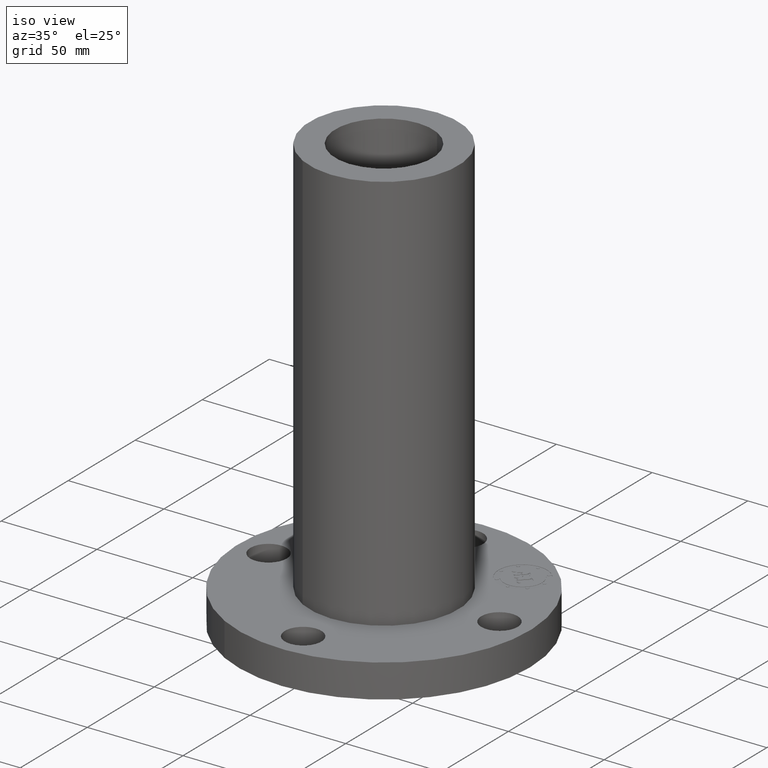
[diagram: clean part render]
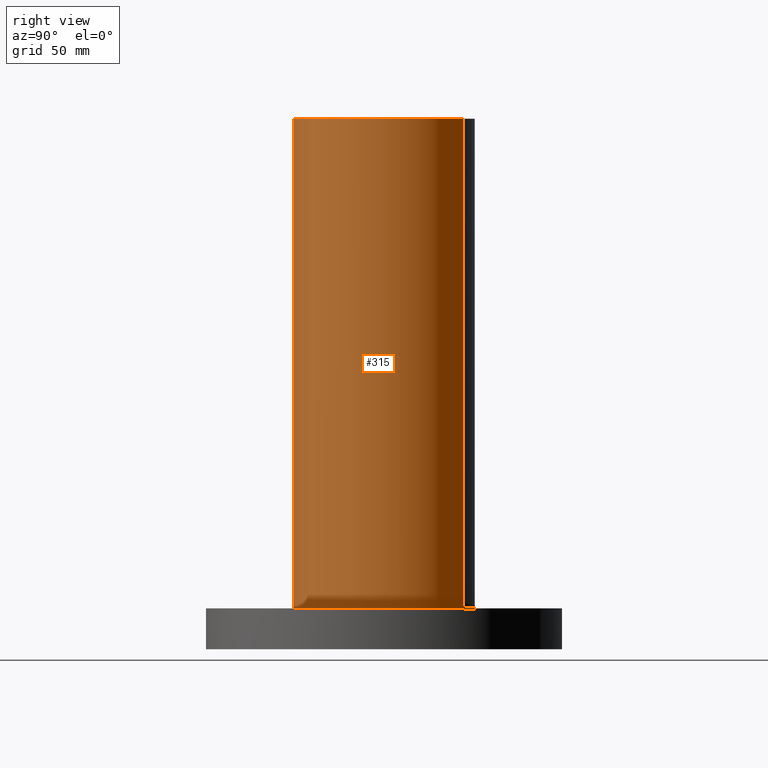
[diagram: tour spotlight — one face highlighted and labeled with its STEP entity id]
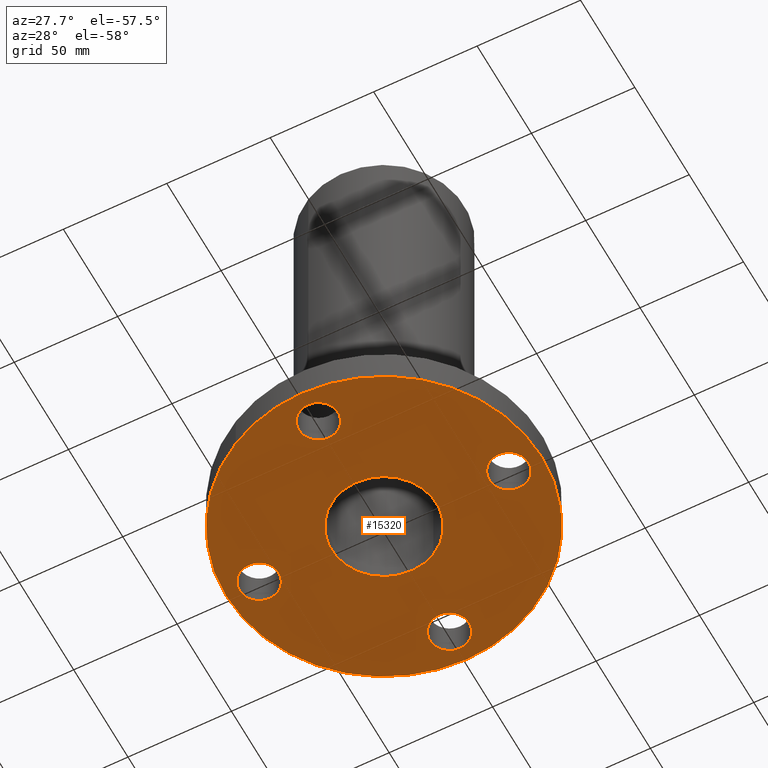
[diagram: tour spotlight — one face highlighted and labeled with its STEP entity id]
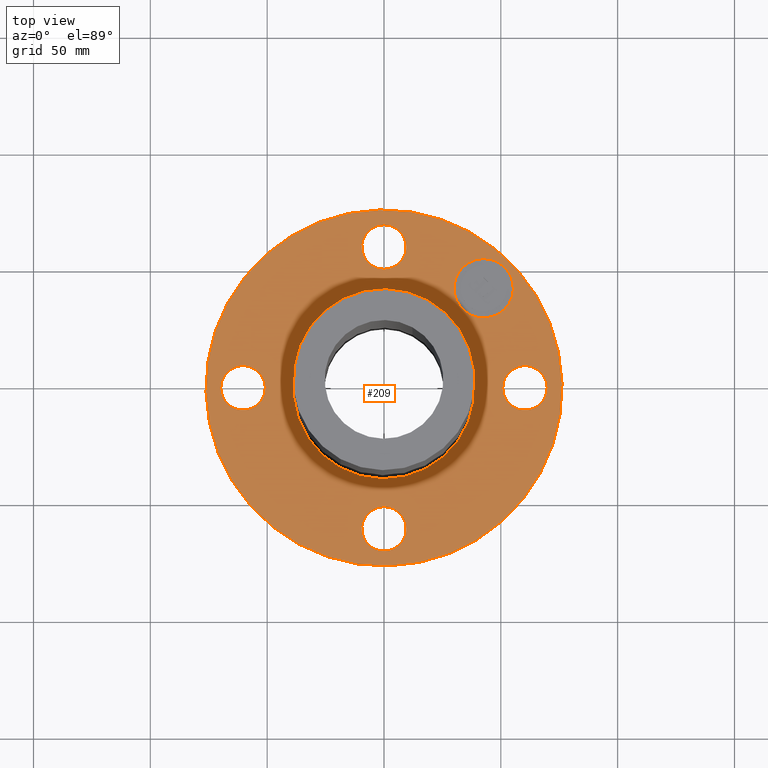
[diagram: tour spotlight — one face highlighted and labeled with its STEP entity id]
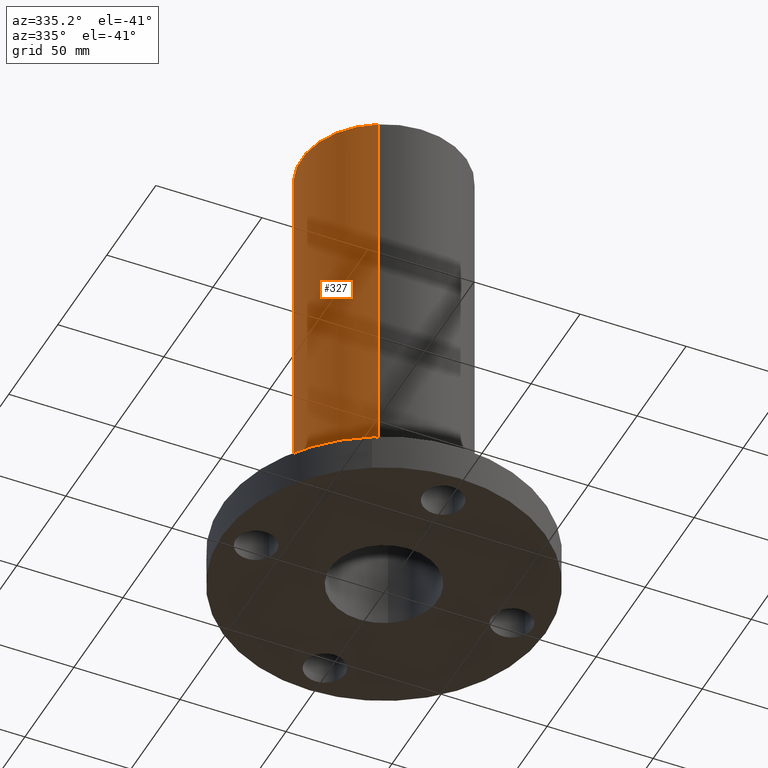
[diagram: tour spotlight — one face highlighted and labeled with its STEP entity id]
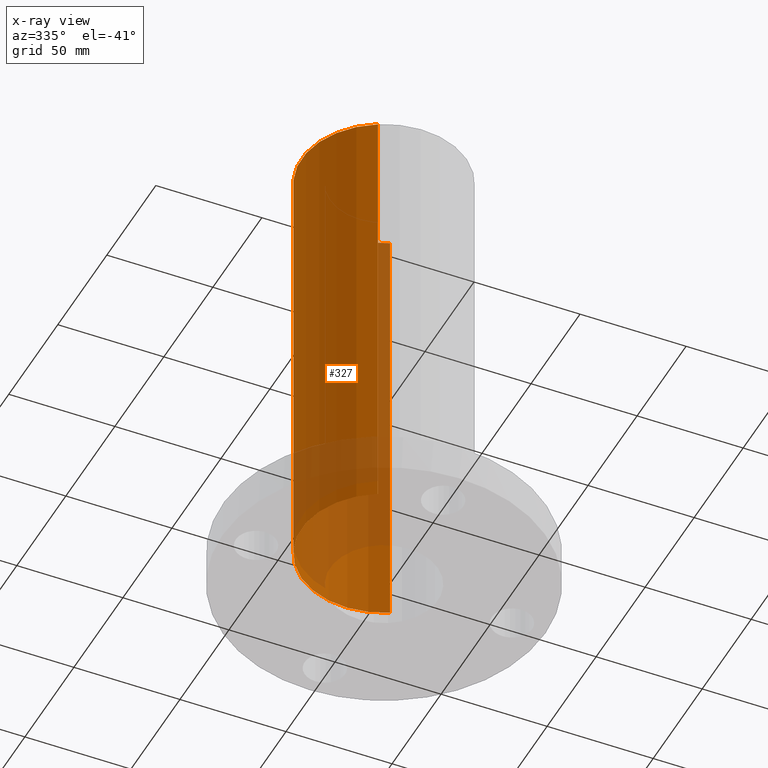
[diagram: x-ray of the same camera — body ghosted, this tour face saturated]
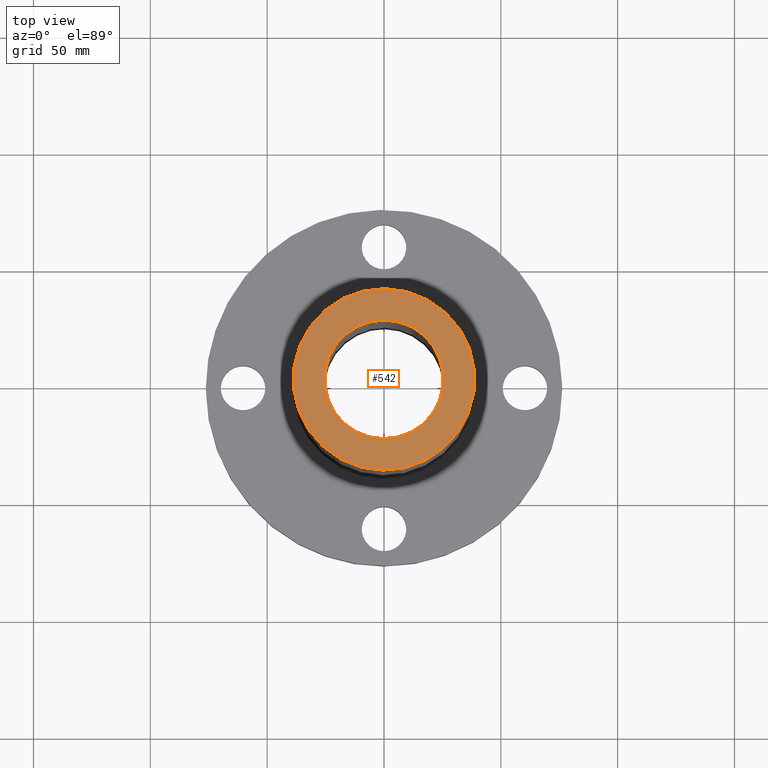
[diagram: tour spotlight — one face highlighted and labeled with its STEP entity id]
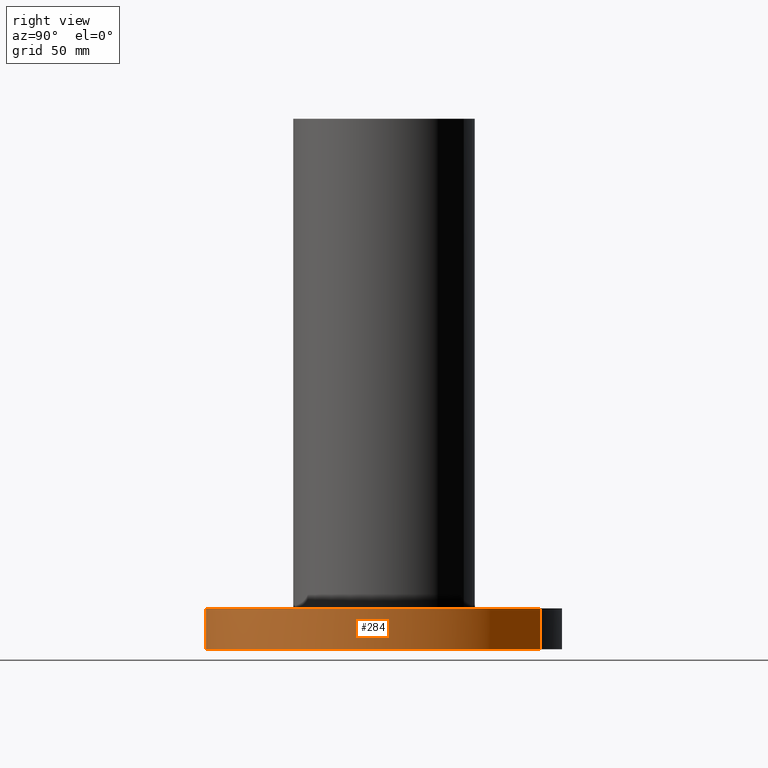
[diagram: tour spotlight — one face highlighted and labeled with its STEP entity id]
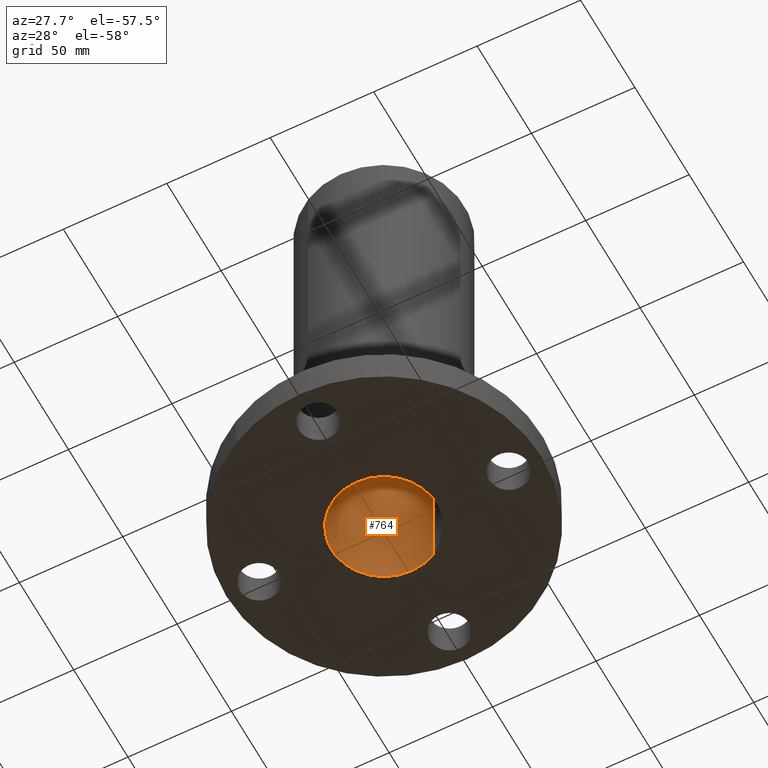
[diagram: tour spotlight — one face highlighted and labeled with its STEP entity id]
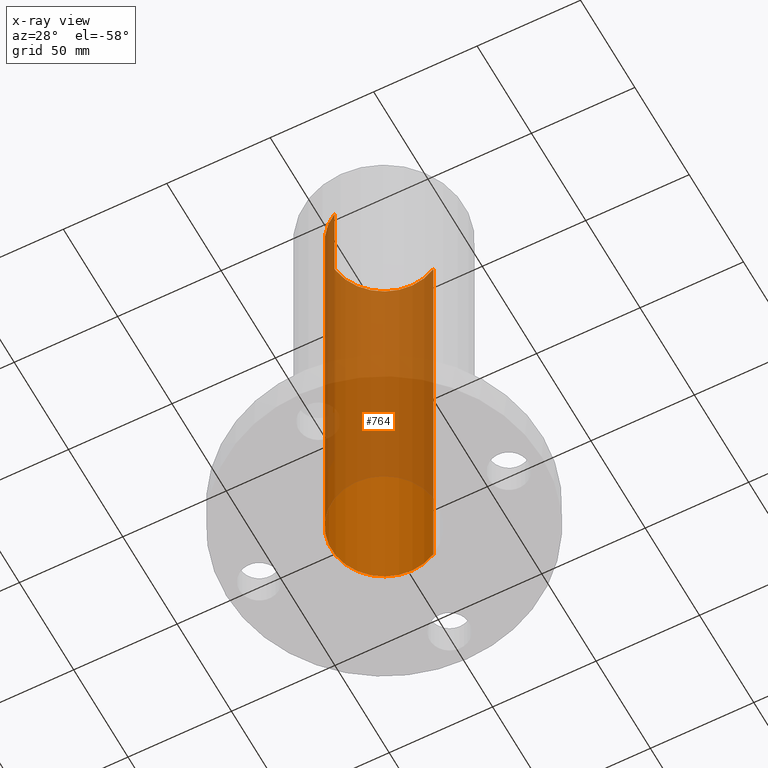
[diagram: x-ray of the same camera — body ghosted, this tour face saturated]
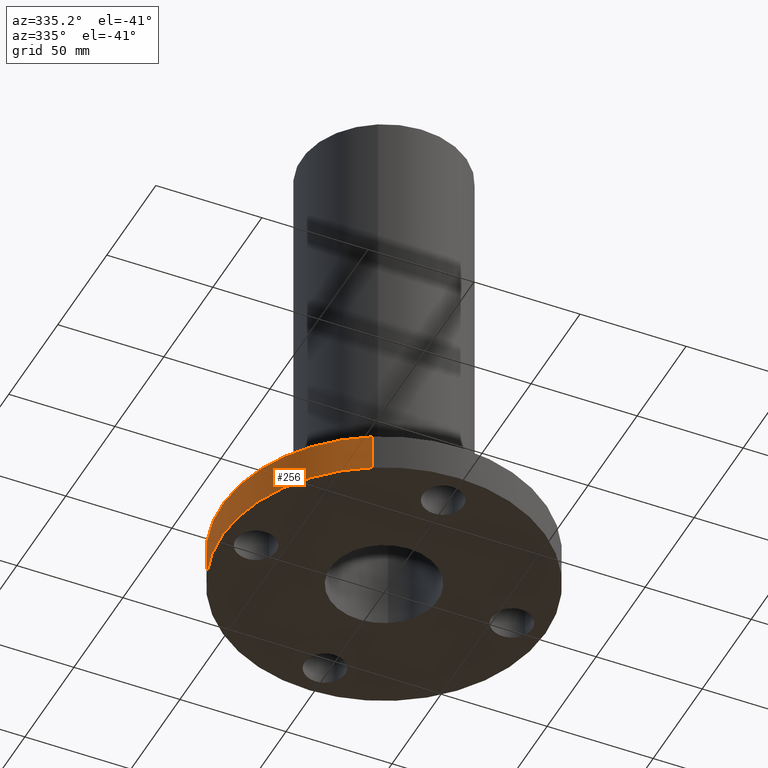
[diagram: tour spotlight — one face highlighted and labeled with its STEP entity id]
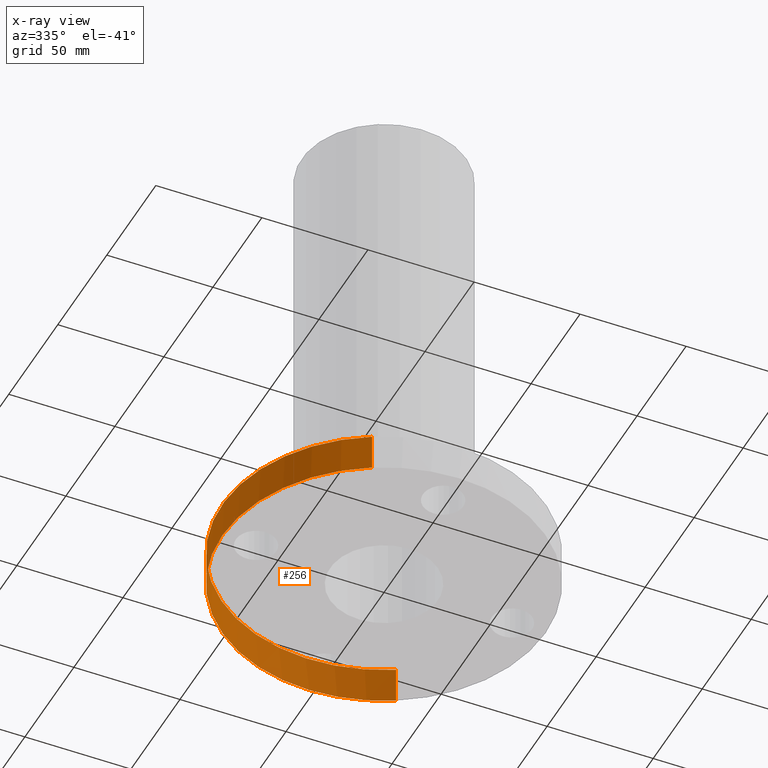
[diagram: x-ray of the same camera — body ghosted, this tour face saturated]
A machine part: a face-by-face anatomy tour. The part has 402 B-rep faces; the first image is the clean iso view, then the 8 largest visible faces are spotlighted one at a time (largest first), each with its STEP entity span.

Face 1 — right view, entity #315. In plain terms, the highlighted cylindrical surface (partial cylindrical patch) has radius 38.862 mm, axis along (0, 0, -1).
Definition (entity closure, byte-faithful):
#130=AXIS2_PLACEMENT_3D('Circle Axis2P3D',#128,#129,$) ;
#288=AXIS2_PLACEMENT_3D('Cylinder Axis2P3D',#285,#286,#287) ;
#299=AXIS2_PLACEMENT_3D('Circle Axis2P3D',#297,#298,$) ;
#123=CARTESIAN_POINT('Vertex',(-0.733521074067,-1.3427013197,0.687500000003)) ;
#125=CARTESIAN_POINT('Vertex',(0.733521074067,1.3427013197,0.687500000003)) ;
#128=CARTESIAN_POINT('Axis2P3D Location',(0.,0.,0.687500000003)) ;
#285=CARTESIAN_POINT('Axis2P3D Location',(0.,0.,4.43750000002)) ;
#290=CARTESIAN_POINT('Line Origine',(0.733521074067,1.3427013197,4.81250000002)) ;
#294=CARTESIAN_POINT('Vertex',(0.733521074067,1.3427013197,8.93750000004)) ;
#297=CARTESIAN_POINT('Axis2P3D Location',(0.,0.,8.93750000004)) ;
#301=CARTESIAN_POINT('Vertex',(-0.733521074067,-1.3427013197,8.93750000004)) ;
#304=CARTESIAN_POINT('Line Origine',(-0.733521074067,-1.3427013197,4.81250000002)) ;
#129=DIRECTION('Axis2P3D Direction',(0.,0.,-0.0393700787402)) ;
#286=DIRECTION('Axis2P3D Direction',(0.,0.,-0.0393700787402)) ;
#287=DIRECTION('Axis2P3D XDirection',(-0.0188750212049,-0.0345504945626,0.)) ;
#291=DIRECTION('Vector Direction',(0.,0.,-0.0393700787402)) ;
#298=DIRECTION('Axis2P3D Direction',(0.,0.,-0.0393700787402)) ;
#305=DIRECTION('Vector Direction',(0.,0.,-0.0393700787402)) ;
#292=VECTOR('Line Direction',#291,0.0393700787402) ;
#306=VECTOR('Line Direction',#305,0.0393700787402) ;
#310=ORIENTED_EDGE('',*,*,#132,.F.) ;
#311=ORIENTED_EDGE('',*,*,#296,.T.) ;
#312=ORIENTED_EDGE('',*,*,#303,.T.) ;
#313=ORIENTED_EDGE('',*,*,#308,.F.) ;
#315=ADVANCED_FACE('PartBody',(#314),#289,.T.) ;
#131=CIRCLE('generated circle',#130,1.53000000001) ;
#300=CIRCLE('generated circle',#299,1.53000000001) ;
#289=CYLINDRICAL_SURFACE('generated cylinder',#288,1.53000000001) ;
#132=EDGE_CURVE('',#126,#124,#131,.T.) ;
#296=EDGE_CURVE('',#126,#295,#293,.F.) ;
#303=EDGE_CURVE('',#295,#302,#300,.T.) ;
#308=EDGE_CURVE('',#124,#302,#307,.F.) ;
#309=EDGE_LOOP('',(#310,#311,#312,#313)) ;
#314=FACE_OUTER_BOUND('',#309,.T.) ;
#293=LINE('Line',#290,#292) ;
#307=LINE('Line',#304,#306) ;
#124=VERTEX_POINT('',#123) ;
#126=VERTEX_POINT('',#125) ;
#295=VERTEX_POINT('',#294) ;
#302=VERTEX_POINT('',#301) ;

Face 2 — auxiliary view, entity #15320. In plain terms, the highlighted planar face has unit normal (0, 0, 1).
Definition (entity closure, byte-faithful):
#65=AXIS2_PLACEMENT_3D('Circle Axis2P3D',#63,#64,$) ;
#82=AXIS2_PLACEMENT_3D('Circle Axis2P3D',#80,#81,$) ;
#217=AXIS2_PLACEMENT_3D('Circle Axis2P3D',#215,#216,$) ;
#226=AXIS2_PLACEMENT_3D('Circle Axis2P3D',#224,#225,$) ;
#233=AXIS2_PLACEMENT_3D('Circle Axis2P3D',#231,#232,$) ;
#259=AXIS2_PLACEMENT_3D('Circle Axis2P3D',#257,#258,$) ;
#266=AXIS2_PLACEMENT_3D('Circle Axis2P3D',#264,#265,$) ;
#273=AXIS2_PLACEMENT_3D('Circle Axis2P3D',#271,#272,$) ;
#349=AXIS2_PLACEMENT_3D('Circle Axis2P3D',#347,#348,$) ;
#361=AXIS2_PLACEMENT_3D('Circle Axis2P3D',#359,#360,$) ;
#392=AXIS2_PLACEMENT_3D('Circle Axis2P3D',#390,#391,$) ;
#404=AXIS2_PLACEMENT_3D('Circle Axis2P3D',#402,#403,$) ;
#435=AXIS2_PLACEMENT_3D('Circle Axis2P3D',#433,#434,$) ;
#447=AXIS2_PLACEMENT_3D('Circle Axis2P3D',#445,#446,$) ;
#729=AXIS2_PLACEMENT_3D('Circle Axis2P3D',#727,#728,$) ;
#755=AXIS2_PLACEMENT_3D('Circle Axis2P3D',#753,#754,$) ;
#15290=AXIS2_PLACEMENT_3D('Plane Axis2P3D',#15287,#15288,#15289) ;
#46=CARTESIAN_POINT('Vertex',(2.0459065393,-0.179784576977,2.2401153548E-016)) ;
#60=CARTESIAN_POINT('Vertex',(2.70409346072,0.179784576977,2.2401153548E-016)) ;
#63=CARTESIAN_POINT('Axis2P3D Location',(2.37500000001,0.,0.)) ;
#80=CARTESIAN_POINT('Axis2P3D Location',(2.37500000001,0.,0.)) ;
#215=CARTESIAN_POINT('Axis2P3D Location',(0.,0.,5.59482469102E-016)) ;
#219=CARTESIAN_POINT('Vertex',(-4.82436794905E-016,3.00000000001,0.)) ;
#221=CARTESIAN_POINT('Vertex',(1.43827661582,2.63274768568,5.59482469102E-016)) ;
#224=CARTESIAN_POINT('Axis2P3D Location',(0.,0.,5.59482469102E-016)) ;
#228=CARTESIAN_POINT('Vertex',(-3.00000000001,-1.6996616693E-015,0.)) ;
#231=CARTESIAN_POINT('Axis2P3D Location',(0.,0.,5.59482469102E-016)) ;
#235=CARTESIAN_POINT('Vertex',(-1.43827661582,-2.63274768568,5.59482469102E-016)) ;
#257=CARTESIAN_POINT('Axis2P3D Location',(0.,0.,5.59482469102E-016)) ;
#261=CARTESIAN_POINT('Vertex',(-4.82436794905E-016,-3.00000000001,0.)) ;
#264=CARTESIAN_POINT('Axis2P3D Location',(0.,0.,5.59482469102E-016)) ;
#268=CARTESIAN_POINT('Vertex',(3.00000000001,8.39223703654E-016,0.)) ;
#271=CARTESIAN_POINT('Axis2P3D Location',(0.,0.,5.59482469102E-016)) ;
#337=CARTESIAN_POINT('Vertex',(-0.179784576977,-2.0459065393,2.2401153548E-016)) ;
#344=CARTESIAN_POINT('Vertex',(0.179784576977,-2.70409346072,2.2401153548E-016)) ;
#347=CARTESIAN_POINT('Axis2P3D Location',(-1.34314427152E-016,-2.37500000001,0.)) ;
#359=CARTESIAN_POINT('Axis2P3D Location',(-1.34314427152E-016,-2.37500000001,0.)) ;
#380=CARTESIAN_POINT('Vertex',(-2.0459065393,0.179784576977,2.2401153548E-016)) ;
#387=CARTESIAN_POINT('Vertex',(-2.70409346072,-0.179784576977,2.2401153548E-016)) ;
#390=CARTESIAN_POINT('Axis2P3D Location',(-2.37500000001,-2.90853614799E-016,0.)) ;
#402=CARTESIAN_POINT('Axis2P3D Location',(-2.37500000001,-2.90853614799E-016,0.)) ;
#423=CARTESIAN_POINT('Vertex',(0.179784576977,2.0459065393,2.2401153548E-016)) ;
#430=CARTESIAN_POINT('Vertex',(-0.179784576977,2.70409346072,2.2401153548E-016)) ;
#433=CARTESIAN_POINT('Axis2P3D Location',(-1.56539187647E-016,2.37500000001,0.)) ;
#445=CARTESIAN_POINT('Axis2P3D Location',(-1.56539187647E-016,2.37500000001,0.)) ;
#727=CARTESIAN_POINT('Axis2P3D Location',(0.,0.,0.)) ;
#731=CARTESIAN_POINT('Vertex',(-0.479425538606,-0.877582561894,0.)) ;
#733=CARTESIAN_POINT('Vertex',(0.479425538606,0.877582561894,0.)) ;
#753=CARTESIAN_POINT('Axis2P3D Location',(0.,0.,0.)) ;
#15287=CARTESIAN_POINT('Axis2P3D Location',(0.,0.,0.)) ;
#64=DIRECTION('Axis2P3D Direction',(0.,-0.,0.0393700787402)) ;
#81=DIRECTION('Axis2P3D Direction',(0.,-0.,0.0393700787402)) ;
#216=DIRECTION('Axis2P3D Direction',(0.,0.,-0.0393700787402)) ;
#225=DIRECTION('Axis2P3D Direction',(0.,0.,-0.0393700787402)) ;
#232=DIRECTION('Axis2P3D Direction',(0.,0.,-0.0393700787402)) ;
#258=DIRECTION('Axis2P3D Direction',(0.,0.,-0.0393700787402)) ;
#265=DIRECTION('Axis2P3D Direction',(0.,0.,-0.0393700787402)) ;
#272=DIRECTION('Axis2P3D Direction',(0.,0.,-0.0393700787402)) ;
#348=DIRECTION('Axis2P3D Direction',(-0.,0.,0.0393700787402)) ;
#360=DIRECTION('Axis2P3D Direction',(-0.,0.,0.0393700787402)) ;
#391=DIRECTION('Axis2P3D Direction',(0.,0.,0.0393700787402)) ;
#403=DIRECTION('Axis2P3D Direction',(0.,0.,0.0393700787402)) ;
#434=DIRECTION('Axis2P3D Direction',(0.,0.,0.0393700787402)) ;
#446=DIRECTION('Axis2P3D Direction',(0.,0.,0.0393700787402)) ;
#728=DIRECTION('Axis2P3D Direction',(0.,0.,-0.0393700787402)) ;
#754=DIRECTION('Axis2P3D Direction',(0.,0.,-0.0393700787402)) ;
#15288=DIRECTION('Axis2P3D Direction',(0.,0.,0.0393700787402)) ;
#15289=DIRECTION('Axis2P3D XDirection',(0.0393700787402,0.,0.)) ;
#15293=ORIENTED_EDGE('',*,*,#263,.T.) ;
#15294=ORIENTED_EDGE('',*,*,#237,.T.) ;
#15295=ORIENTED_EDGE('',*,*,#230,.T.) ;
#15296=ORIENTED_EDGE('',*,*,#223,.T.) ;
#15297=ORIENTED_EDGE('',*,*,#275,.T.) ;
#15298=ORIENTED_EDGE('',*,*,#270,.T.) ;
#15301=ORIENTED_EDGE('',*,*,#437,.F.) ;
#15302=ORIENTED_EDGE('',*,*,#449,.F.) ;
#15305=ORIENTED_EDGE('',*,*,#394,.F.) ;
#15306=ORIENTED_EDGE('',*,*,#406,.F.) ;
#15309=ORIENTED_EDGE('',*,*,#351,.F.) ;
#15310=ORIENTED_EDGE('',*,*,#363,.F.) ;
#15313=ORIENTED_EDGE('',*,*,#84,.F.) ;
#15314=ORIENTED_EDGE('',*,*,#67,.F.) ;
#15317=ORIENTED_EDGE('',*,*,#757,.T.) ;
#15318=ORIENTED_EDGE('',*,*,#735,.T.) ;
#15303=FACE_BOUND('',#15300,.T.) ;
#15307=FACE_BOUND('',#15304,.T.) ;
#15311=FACE_BOUND('',#15308,.T.) ;
#15315=FACE_BOUND('',#15312,.T.) ;
#15319=FACE_BOUND('',#15316,.T.) ;
#15320=ADVANCED_FACE('PartBody',(#15299,#15303,#15307,#15311,#15315,#15319),#15291,.F.) ;
#66=CIRCLE('generated circle',#65,0.375000000002) ;
#83=CIRCLE('generated circle',#82,0.375000000002) ;
#218=CIRCLE('generated circle',#217,3.00000000001) ;
#227=CIRCLE('generated circle',#226,3.00000000001) ;
#234=CIRCLE('generated circle',#233,3.00000000001) ;
#260=CIRCLE('generated circle',#259,3.00000000001) ;
#267=CIRCLE('generated circle',#266,3.00000000001) ;
#274=CIRCLE('generated circle',#273,3.00000000001) ;
#350=CIRCLE('generated circle',#349,0.375000000002) ;
#362=CIRCLE('generated circle',#361,0.375000000002) ;
#393=CIRCLE('generated circle',#392,0.375000000001) ;
#405=CIRCLE('generated circle',#404,0.375000000001) ;
#436=CIRCLE('generated circle',#435,0.375000000002) ;
#448=CIRCLE('generated circle',#447,0.375000000002) ;
#730=CIRCLE('generated circle',#729,1.) ;
#756=CIRCLE('generated circle',#755,1.) ;
#67=EDGE_CURVE('',#61,#47,#66,.F.) ;
#84=EDGE_CURVE('',#47,#61,#83,.F.) ;
#223=EDGE_CURVE('',#220,#222,#218,.T.) ;
#230=EDGE_CURVE('',#229,#220,#227,.T.) ;
#237=EDGE_CURVE('',#236,#229,#234,.T.) ;
#263=EDGE_CURVE('',#262,#236,#260,.T.) ;
#270=EDGE_CURVE('',#269,#262,#267,.T.) ;
#275=EDGE_CURVE('',#222,#269,#274,.T.) ;
#351=EDGE_CURVE('',#345,#338,#350,.F.) ;
#363=EDGE_CURVE('',#338,#345,#362,.F.) ;
#394=EDGE_CURVE('',#388,#381,#393,.F.) ;
#406=EDGE_CURVE('',#381,#388,#405,.F.) ;
#437=EDGE_CURVE('',#431,#424,#436,.F.) ;
#449=EDGE_CURVE('',#424,#431,#448,.F.) ;
#735=EDGE_CURVE('',#732,#734,#730,.F.) ;
#757=EDGE_CURVE('',#734,#732,#756,.F.) ;
#15292=EDGE_LOOP('',(#15293,#15294,#15295,#15296,#15297,#15298)) ;
#15300=EDGE_LOOP('',(#15301,#15302)) ;
#15304=EDGE_LOOP('',(#15305,#15306)) ;
#15308=EDGE_LOOP('',(#15309,#15310)) ;
#15312=EDGE_LOOP('',(#15313,#15314)) ;
#15316=EDGE_LOOP('',(#15317,#15318)) ;
#15299=FACE_OUTER_BOUND('',#15292,.T.) ;
#15291=PLANE('',#15290) ;
#47=VERTEX_POINT('',#46) ;
#61=VERTEX_POINT('',#60) ;
#220=VERTEX_POINT('',#219) ;
#222=VERTEX_POINT('',#221) ;
#229=VERTEX_POINT('',#228) ;
#236=VERTEX_POINT('',#235) ;
#262=VERTEX_POINT('',#261) ;
#269=VERTEX_POINT('',#268) ;
#338=VERTEX_POINT('',#337) ;
#345=VERTEX_POINT('',#344) ;
#381=VERTEX_POINT('',#380) ;
#388=VERTEX_POINT('',#387) ;
#424=VERTEX_POINT('',#423) ;
#431=VERTEX_POINT('',#430) ;
#732=VERTEX_POINT('',#731) ;
#734=VERTEX_POINT('',#733) ;

Face 3 — top view, entity #209. In plain terms, the highlighted planar face has unit normal (0, 0, -1).
Definition (entity closure, byte-faithful):
#51=AXIS2_PLACEMENT_3D('Circle Axis2P3D',#49,#50,$) ;
#77=AXIS2_PLACEMENT_3D('Circle Axis2P3D',#75,#76,$) ;
#95=AXIS2_PLACEMENT_3D('Plane Axis2P3D',#92,#93,#94) ;
#99=AXIS2_PLACEMENT_3D('Circle Axis2P3D',#97,#98,$) ;
#108=AXIS2_PLACEMENT_3D('Circle Axis2P3D',#106,#107,$) ;
#121=AXIS2_PLACEMENT_3D('Circle Axis2P3D',#119,#120,$) ;
#130=AXIS2_PLACEMENT_3D('Circle Axis2P3D',#128,#129,$) ;
#139=AXIS2_PLACEMENT_3D('Circle Axis2P3D',#137,#138,$) ;
#148=AXIS2_PLACEMENT_3D('Circle Axis2P3D',#146,#147,$) ;
#157=AXIS2_PLACEMENT_3D('Circle Axis2P3D',#155,#156,$) ;
#166=AXIS2_PLACEMENT_3D('Circle Axis2P3D',#164,#165,$) ;
#175=AXIS2_PLACEMENT_3D('Circle Axis2P3D',#173,#174,$) ;
#184=AXIS2_PLACEMENT_3D('Circle Axis2P3D',#182,#183,$) ;
#193=AXIS2_PLACEMENT_3D('Circle Axis2P3D',#191,#192,$) ;
#202=AXIS2_PLACEMENT_3D('Circle Axis2P3D',#200,#201,$) ;
#44=CARTESIAN_POINT('Vertex',(2.0459065393,-0.179784576977,0.687500000003)) ;
#49=CARTESIAN_POINT('Axis2P3D Location',(2.37500000001,0.,0.687500000003)) ;
#53=CARTESIAN_POINT('Vertex',(2.70409346072,0.179784576977,0.687500000003)) ;
#75=CARTESIAN_POINT('Axis2P3D Location',(2.37500000001,0.,0.687500000003)) ;
#92=CARTESIAN_POINT('Axis2P3D Location',(0.,3.00000000001,0.687500000003)) ;
#97=CARTESIAN_POINT('Axis2P3D Location',(0.,0.,0.687500000003)) ;
#101=CARTESIAN_POINT('Vertex',(1.43827661582,2.63274768568,0.687500000003)) ;
#103=CARTESIAN_POINT('Vertex',(-1.43827661582,-2.63274768568,0.687500000003)) ;
#106=CARTESIAN_POINT('Axis2P3D Location',(0.,0.,0.687500000003)) ;
#119=CARTESIAN_POINT('Axis2P3D Location',(0.,0.,0.687500000003)) ;
#123=CARTESIAN_POINT('Vertex',(-0.733521074067,-1.3427013197,0.687500000003)) ;
#125=CARTESIAN_POINT('Vertex',(0.733521074067,1.3427013197,0.687500000003)) ;
#128=CARTESIAN_POINT('Axis2P3D Location',(0.,0.,0.687500000003)) ;
#137=CARTESIAN_POINT('Axis2P3D Location',(-1.74838271595E-016,-2.37500000001,0.687500000003)) ;
#141=CARTESIAN_POINT('Vertex',(-0.179784576977,-2.0459065393,0.687500000003)) ;
#143=CARTESIAN_POINT('Vertex',(0.179784576977,-2.70409346072,0.687500000003)) ;
#146=CARTESIAN_POINT('Axis2P3D Location',(-1.74838271595E-016,-2.37500000001,0.687500000003)) ;
#155=CARTESIAN_POINT('Axis2P3D Location',(-2.37500000001,-5.59482469102E-016,0.687500000003)) ;
#159=CARTESIAN_POINT('Vertex',(-2.0459065393,0.179784576977,0.687500000003)) ;
#161=CARTESIAN_POINT('Vertex',(-2.70409346072,-0.179784576977,0.687500000003)) ;
#164=CARTESIAN_POINT('Axis2P3D Location',(-2.37500000001,-5.59482469102E-016,0.687500000003)) ;
#173=CARTESIAN_POINT('Axis2P3D Location',(-1.39870617276E-016,2.37500000001,0.687500000003)) ;
#177=CARTESIAN_POINT('Vertex',(0.179784576977,2.0459065393,0.687500000003)) ;
#179=CARTESIAN_POINT('Vertex',(-0.179784576977,2.70409346072,0.687500000003)) ;
#182=CARTESIAN_POINT('Axis2P3D Location',(-3.49676543189E-017,2.37500000001,0.687500000003)) ;
#191=CARTESIAN_POINT('Axis2P3D Location',(1.67937860532,1.67937860532,0.687500000003)) ;
#195=CARTESIAN_POINT('Vertex',(2.03293199238,1.32582521827,0.687500000003)) ;
#197=CARTESIAN_POINT('Vertex',(1.32582521827,2.03293199238,0.687500000003)) ;
#200=CARTESIAN_POINT('Axis2P3D Location',(1.67937860532,1.67937860532,0.687500000003)) ;
#50=DIRECTION('Axis2P3D Direction',(0.,-0.,0.0393700787402)) ;
#76=DIRECTION('Axis2P3D Direction',(0.,-0.,0.0393700787402)) ;
#93=DIRECTION('Axis2P3D Direction',(0.,0.,-0.0393700787402)) ;
#94=DIRECTION('Axis2P3D XDirection',(0.0393700787402,0.,0.)) ;
#98=DIRECTION('Axis2P3D Direction',(0.,0.,-0.0393700787402)) ;
#107=DIRECTION('Axis2P3D Direction',(0.,0.,-0.0393700787402)) ;
#120=DIRECTION('Axis2P3D Direction',(0.,0.,-0.0393700787402)) ;
#129=DIRECTION('Axis2P3D Direction',(0.,0.,-0.0393700787402)) ;
#138=DIRECTION('Axis2P3D Direction',(0.,0.,-0.0393700787402)) ;
#147=DIRECTION('Axis2P3D Direction',(0.,0.,-0.0393700787402)) ;
#156=DIRECTION('Axis2P3D Direction',(0.,0.,-0.0393700787402)) ;
#165=DIRECTION('Axis2P3D Direction',(0.,0.,-0.0393700787402)) ;
#174=DIRECTION('Axis2P3D Direction',(0.,0.,-0.0393700787402)) ;
#183=DIRECTION('Axis2P3D Direction',(0.,0.,-0.0393700787402)) ;
#192=DIRECTION('Axis2P3D Direction',(0.,0.,-0.0393700787402)) ;
#201=DIRECTION('Axis2P3D Direction',(0.,0.,-0.0393700787402)) ;
#112=ORIENTED_EDGE('',*,*,#105,.F.) ;
#113=ORIENTED_EDGE('',*,*,#110,.F.) ;
#116=ORIENTED_EDGE('',*,*,#55,.T.) ;
#117=ORIENTED_EDGE('',*,*,#79,.T.) ;
#134=ORIENTED_EDGE('',*,*,#127,.T.) ;
#135=ORIENTED_EDGE('',*,*,#132,.T.) ;
#152=ORIENTED_EDGE('',*,*,#145,.T.) ;
#153=ORIENTED_EDGE('',*,*,#150,.T.) ;
#170=ORIENTED_EDGE('',*,*,#163,.T.) ;
#171=ORIENTED_EDGE('',*,*,#168,.T.) ;
#188=ORIENTED_EDGE('',*,*,#181,.T.) ;
#189=ORIENTED_EDGE('',*,*,#186,.T.) ;
#206=ORIENTED_EDGE('',*,*,#199,.F.) ;
#207=ORIENTED_EDGE('',*,*,#204,.F.) ;
#118=FACE_BOUND('',#115,.T.) ;
#136=FACE_BOUND('',#133,.T.) ;
#154=FACE_BOUND('',#151,.T.) ;
#172=FACE_BOUND('',#169,.T.) ;
#190=FACE_BOUND('',#187,.T.) ;
#208=FACE_BOUND('',#205,.T.) ;
#209=ADVANCED_FACE('PartBody',(#114,#118,#136,#154,#172,#190,#208),#96,.F.) ;
#52=CIRCLE('generated circle',#51,0.375000000002) ;
#78=CIRCLE('generated circle',#77,0.375000000002) ;
#100=CIRCLE('generated circle',#99,3.00000000001) ;
#109=CIRCLE('generated circle',#108,3.00000000001) ;
#122=CIRCLE('generated circle',#121,1.53000000001) ;
#131=CIRCLE('generated circle',#130,1.53000000001) ;
#140=CIRCLE('generated circle',#139,0.375000000002) ;
#149=CIRCLE('generated circle',#148,0.375000000002) ;
#158=CIRCLE('generated circle',#157,0.375000000001) ;
#167=CIRCLE('generated circle',#166,0.375000000001) ;
#176=CIRCLE('generated circle',#175,0.375000000002) ;
#185=CIRCLE('generated circle',#184,0.375000000002) ;
#194=CIRCLE('generated circle',#193,0.499999995002) ;
#203=CIRCLE('generated circle',#202,0.499999995002) ;
#55=EDGE_CURVE('',#54,#45,#52,.F.) ;
#79=EDGE_CURVE('',#45,#54,#78,.F.) ;
#105=EDGE_CURVE('',#102,#104,#100,.T.) ;
#110=EDGE_CURVE('',#104,#102,#109,.T.) ;
#127=EDGE_CURVE('',#124,#126,#122,.T.) ;
#132=EDGE_CURVE('',#126,#124,#131,.T.) ;
#145=EDGE_CURVE('',#142,#144,#140,.T.) ;
#150=EDGE_CURVE('',#144,#142,#149,.T.) ;
#163=EDGE_CURVE('',#160,#162,#158,.T.) ;
#168=EDGE_CURVE('',#162,#160,#167,.T.) ;
#181=EDGE_CURVE('',#178,#180,#176,.T.) ;
#186=EDGE_CURVE('',#180,#178,#185,.T.) ;
#199=EDGE_CURVE('',#196,#198,#194,.F.) ;
#204=EDGE_CURVE('',#198,#196,#203,.F.) ;
#111=EDGE_LOOP('',(#112,#113)) ;
#115=EDGE_LOOP('',(#116,#117)) ;
#133=EDGE_LOOP('',(#134,#135)) ;
#151=EDGE_LOOP('',(#152,#153)) ;
#169=EDGE_LOOP('',(#170,#171)) ;
#187=EDGE_LOOP('',(#188,#189)) ;
#205=EDGE_LOOP('',(#206,#207)) ;
#114=FACE_OUTER_BOUND('',#111,.T.) ;
#96=PLANE('',#95) ;
#45=VERTEX_POINT('',#44) ;
#54=VERTEX_POINT('',#53) ;
#102=VERTEX_POINT('',#101) ;
#104=VERTEX_POINT('',#103) ;
#124=VERTEX_POINT('',#123) ;
#126=VERTEX_POINT('',#125) ;
#142=VERTEX_POINT('',#141) ;
#144=VERTEX_POINT('',#143) ;
#160=VERTEX_POINT('',#159) ;
#162=VERTEX_POINT('',#161) ;
#178=VERTEX_POINT('',#177) ;
#180=VERTEX_POINT('',#179) ;
#196=VERTEX_POINT('',#195) ;
#198=VERTEX_POINT('',#197) ;

Face 4 — auxiliary view, entity #327. An x-ray twin of the same camera follows (body ghosted, this face saturated) — the face is partly hidden behind the body. In plain terms, the highlighted cylindrical surface (partial cylindrical patch) has radius 38.862 mm, axis along (0, 0, -1).
Definition (entity closure, byte-faithful):
#121=AXIS2_PLACEMENT_3D('Circle Axis2P3D',#119,#120,$) ;
#288=AXIS2_PLACEMENT_3D('Cylinder Axis2P3D',#285,#286,#287) ;
#318=AXIS2_PLACEMENT_3D('Circle Axis2P3D',#316,#317,$) ;
#119=CARTESIAN_POINT('Axis2P3D Location',(0.,0.,0.687500000003)) ;
#123=CARTESIAN_POINT('Vertex',(-0.733521074067,-1.3427013197,0.687500000003)) ;
#125=CARTESIAN_POINT('Vertex',(0.733521074067,1.3427013197,0.687500000003)) ;
#285=CARTESIAN_POINT('Axis2P3D Location',(0.,0.,4.43750000002)) ;
#290=CARTESIAN_POINT('Line Origine',(0.733521074067,1.3427013197,4.81250000002)) ;
#294=CARTESIAN_POINT('Vertex',(0.733521074067,1.3427013197,8.93750000004)) ;
#301=CARTESIAN_POINT('Vertex',(-0.733521074067,-1.3427013197,8.93750000004)) ;
#304=CARTESIAN_POINT('Line Origine',(-0.733521074067,-1.3427013197,4.81250000002)) ;
#316=CARTESIAN_POINT('Axis2P3D Location',(0.,0.,8.93750000004)) ;
#120=DIRECTION('Axis2P3D Direction',(0.,0.,-0.0393700787402)) ;
#286=DIRECTION('Axis2P3D Direction',(0.,0.,-0.0393700787402)) ;
#287=DIRECTION('Axis2P3D XDirection',(-0.0188750212049,-0.0345504945626,0.)) ;
#291=DIRECTION('Vector Direction',(0.,0.,-0.0393700787402)) ;
#305=DIRECTION('Vector Direction',(0.,0.,-0.0393700787402)) ;
#317=DIRECTION('Axis2P3D Direction',(0.,0.,-0.0393700787402)) ;
#292=VECTOR('Line Direction',#291,0.0393700787402) ;
#306=VECTOR('Line Direction',#305,0.0393700787402) ;
#322=ORIENTED_EDGE('',*,*,#127,.F.) ;
#323=ORIENTED_EDGE('',*,*,#308,.T.) ;
#324=ORIENTED_EDGE('',*,*,#320,.T.) ;
#325=ORIENTED_EDGE('',*,*,#296,.F.) ;
#327=ADVANCED_FACE('PartBody',(#326),#289,.T.) ;
#122=CIRCLE('generated circle',#121,1.53000000001) ;
#319=CIRCLE('generated circle',#318,1.53000000001) ;
#289=CYLINDRICAL_SURFACE('generated cylinder',#288,1.53000000001) ;
#127=EDGE_CURVE('',#124,#126,#122,.T.) ;
#296=EDGE_CURVE('',#126,#295,#293,.F.) ;
#308=EDGE_CURVE('',#124,#302,#307,.F.) ;
#320=EDGE_CURVE('',#302,#295,#319,.T.) ;
#321=EDGE_LOOP('',(#322,#323,#324,#325)) ;
#326=FACE_OUTER_BOUND('',#321,.T.) ;
#293=LINE('Line',#290,#292) ;
#307=LINE('Line',#304,#306) ;
#124=VERTEX_POINT('',#123) ;
#126=VERTEX_POINT('',#125) ;
#295=VERTEX_POINT('',#294) ;
#302=VERTEX_POINT('',#301) ;

Face 5 — top view, entity #542. In plain terms, the highlighted planar face has unit normal (0, 0, -1).
Definition (entity closure, byte-faithful):
#299=AXIS2_PLACEMENT_3D('Circle Axis2P3D',#297,#298,$) ;
#318=AXIS2_PLACEMENT_3D('Circle Axis2P3D',#316,#317,$) ;
#518=AXIS2_PLACEMENT_3D('Plane Axis2P3D',#515,#516,#517) ;
#526=AXIS2_PLACEMENT_3D('Circle Axis2P3D',#524,#525,$) ;
#535=AXIS2_PLACEMENT_3D('Circle Axis2P3D',#533,#534,$) ;
#294=CARTESIAN_POINT('Vertex',(0.733521074067,1.3427013197,8.93750000004)) ;
#297=CARTESIAN_POINT('Axis2P3D Location',(0.,0.,8.93750000004)) ;
#301=CARTESIAN_POINT('Vertex',(-0.733521074067,-1.3427013197,8.93750000004)) ;
#316=CARTESIAN_POINT('Axis2P3D Location',(0.,0.,8.93750000004)) ;
#515=CARTESIAN_POINT('Axis2P3D Location',(0.,1.53000000001,8.93750000004)) ;
#524=CARTESIAN_POINT('Axis2P3D Location',(0.,0.,8.93750000004)) ;
#528=CARTESIAN_POINT('Vertex',(-0.479425538606,-0.877582561894,8.93750000004)) ;
#530=CARTESIAN_POINT('Vertex',(0.479425538606,0.877582561894,8.93750000004)) ;
#533=CARTESIAN_POINT('Axis2P3D Location',(0.,0.,8.93750000004)) ;
#298=DIRECTION('Axis2P3D Direction',(0.,0.,-0.0393700787402)) ;
#317=DIRECTION('Axis2P3D Direction',(0.,0.,-0.0393700787402)) ;
#516=DIRECTION('Axis2P3D Direction',(0.,0.,-0.0393700787402)) ;
#517=DIRECTION('Axis2P3D XDirection',(0.0393700787402,0.,0.)) ;
#525=DIRECTION('Axis2P3D Direction',(0.,0.,-0.0393700787402)) ;
#534=DIRECTION('Axis2P3D Direction',(0.,0.,-0.0393700787402)) ;
#521=ORIENTED_EDGE('',*,*,#303,.F.) ;
#522=ORIENTED_EDGE('',*,*,#320,.F.) ;
#539=ORIENTED_EDGE('',*,*,#532,.T.) ;
#540=ORIENTED_EDGE('',*,*,#537,.T.) ;
#541=FACE_BOUND('',#538,.T.) ;
#542=ADVANCED_FACE('PartBody',(#523,#541),#519,.F.) ;
#300=CIRCLE('generated circle',#299,1.53000000001) ;
#319=CIRCLE('generated circle',#318,1.53000000001) ;
#527=CIRCLE('generated circle',#526,1.) ;
#536=CIRCLE('generated circle',#535,1.) ;
#303=EDGE_CURVE('',#295,#302,#300,.T.) ;
#320=EDGE_CURVE('',#302,#295,#319,.T.) ;
#532=EDGE_CURVE('',#529,#531,#527,.T.) ;
#537=EDGE_CURVE('',#531,#529,#536,.T.) ;
#520=EDGE_LOOP('',(#521,#522)) ;
#538=EDGE_LOOP('',(#539,#540)) ;
#523=FACE_OUTER_BOUND('',#520,.T.) ;
#519=PLANE('',#518) ;
#295=VERTEX_POINT('',#294) ;
#302=VERTEX_POINT('',#301) ;
#529=VERTEX_POINT('',#528) ;
#531=VERTEX_POINT('',#530) ;

Face 6 — right view, entity #284. In plain terms, the highlighted cylindrical surface (partial cylindrical patch) has radius 76.2 mm, axis along (0, 0, -1).
Definition (entity closure, byte-faithful):
#99=AXIS2_PLACEMENT_3D('Circle Axis2P3D',#97,#98,$) ;
#213=AXIS2_PLACEMENT_3D('Cylinder Axis2P3D',#210,#211,#212) ;
#259=AXIS2_PLACEMENT_3D('Circle Axis2P3D',#257,#258,$) ;
#266=AXIS2_PLACEMENT_3D('Circle Axis2P3D',#264,#265,$) ;
#273=AXIS2_PLACEMENT_3D('Circle Axis2P3D',#271,#272,$) ;
#97=CARTESIAN_POINT('Axis2P3D Location',(0.,0.,0.687500000003)) ;
#101=CARTESIAN_POINT('Vertex',(1.43827661582,2.63274768568,0.687500000003)) ;
#103=CARTESIAN_POINT('Vertex',(-1.43827661582,-2.63274768568,0.687500000003)) ;
#210=CARTESIAN_POINT('Axis2P3D Location',(0.,0.,4.43750000002)) ;
#221=CARTESIAN_POINT('Vertex',(1.43827661582,2.63274768568,5.59482469102E-016)) ;
#235=CARTESIAN_POINT('Vertex',(-1.43827661582,-2.63274768568,5.59482469102E-016)) ;
#238=CARTESIAN_POINT('Line Origine',(-1.43827661582,-2.63274768568,0.343750000001)) ;
#243=CARTESIAN_POINT('Line Origine',(1.43827661582,2.63274768568,0.343750000001)) ;
#257=CARTESIAN_POINT('Axis2P3D Location',(0.,0.,5.59482469102E-016)) ;
#261=CARTESIAN_POINT('Vertex',(-4.82436794905E-016,-3.00000000001,0.)) ;
#264=CARTESIAN_POINT('Axis2P3D Location',(0.,0.,5.59482469102E-016)) ;
#268=CARTESIAN_POINT('Vertex',(3.00000000001,8.39223703654E-016,0.)) ;
#271=CARTESIAN_POINT('Axis2P3D Location',(0.,0.,5.59482469102E-016)) ;
#98=DIRECTION('Axis2P3D Direction',(0.,0.,-0.0393700787402)) ;
#211=DIRECTION('Axis2P3D Direction',(0.,0.,-0.0393700787402)) ;
#212=DIRECTION('Axis2P3D XDirection',(0.0188750212049,0.0345504945626,0.)) ;
#239=DIRECTION('Vector Direction',(0.,0.,-0.0393700787402)) ;
#244=DIRECTION('Vector Direction',(0.,0.,-0.0393700787402)) ;
#258=DIRECTION('Axis2P3D Direction',(0.,0.,-0.0393700787402)) ;
#265=DIRECTION('Axis2P3D Direction',(0.,0.,-0.0393700787402)) ;
#272=DIRECTION('Axis2P3D Direction',(0.,0.,-0.0393700787402)) ;
#240=VECTOR('Line Direction',#239,0.0393700787402) ;
#245=VECTOR('Line Direction',#244,0.0393700787402) ;
#277=ORIENTED_EDGE('',*,*,#263,.F.) ;
#278=ORIENTED_EDGE('',*,*,#270,.F.) ;
#279=ORIENTED_EDGE('',*,*,#275,.F.) ;
#280=ORIENTED_EDGE('',*,*,#247,.T.) ;
#281=ORIENTED_EDGE('',*,*,#105,.T.) ;
#282=ORIENTED_EDGE('',*,*,#242,.F.) ;
#284=ADVANCED_FACE('PartBody',(#283),#214,.T.) ;
#100=CIRCLE('generated circle',#99,3.00000000001) ;
#260=CIRCLE('generated circle',#259,3.00000000001) ;
#267=CIRCLE('generated circle',#266,3.00000000001) ;
#274=CIRCLE('generated circle',#273,3.00000000001) ;
#214=CYLINDRICAL_SURFACE('generated cylinder',#213,3.00000000001) ;
#105=EDGE_CURVE('',#102,#104,#100,.T.) ;
#242=EDGE_CURVE('',#236,#104,#241,.F.) ;
#247=EDGE_CURVE('',#222,#102,#246,.F.) ;
#263=EDGE_CURVE('',#262,#236,#260,.T.) ;
#270=EDGE_CURVE('',#269,#262,#267,.T.) ;
#275=EDGE_CURVE('',#222,#269,#274,.T.) ;
#276=EDGE_LOOP('',(#277,#278,#279,#280,#281,#282)) ;
#283=FACE_OUTER_BOUND('',#276,.T.) ;
#241=LINE('Line',#238,#240) ;
#246=LINE('Line',#243,#245) ;
#102=VERTEX_POINT('',#101) ;
#104=VERTEX_POINT('',#103) ;
#222=VERTEX_POINT('',#221) ;
#236=VERTEX_POINT('',#235) ;
#262=VERTEX_POINT('',#261) ;
#269=VERTEX_POINT('',#268) ;

Face 7 — auxiliary view, entity #764. An x-ray twin of the same camera follows (body ghosted, this face saturated) — the face is partly hidden behind the body. In plain terms, the highlighted cylindrical surface (partial cylindrical patch) has radius 25.4 mm, axis along (0, 0, -1).
Definition (entity closure, byte-faithful):
#526=AXIS2_PLACEMENT_3D('Circle Axis2P3D',#524,#525,$) ;
#725=AXIS2_PLACEMENT_3D('Cylinder Axis2P3D',#722,#723,#724) ;
#755=AXIS2_PLACEMENT_3D('Circle Axis2P3D',#753,#754,$) ;
#524=CARTESIAN_POINT('Axis2P3D Location',(0.,0.,8.93750000004)) ;
#528=CARTESIAN_POINT('Vertex',(-0.479425538606,-0.877582561894,8.93750000004)) ;
#530=CARTESIAN_POINT('Vertex',(0.479425538606,0.877582561894,8.93750000004)) ;
#722=CARTESIAN_POINT('Axis2P3D Location',(0.,0.,4.43750000002)) ;
#731=CARTESIAN_POINT('Vertex',(-0.479425538606,-0.877582561894,0.)) ;
#733=CARTESIAN_POINT('Vertex',(0.479425538606,0.877582561894,0.)) ;
#736=CARTESIAN_POINT('Line Origine',(-0.479425538606,-0.877582561894,4.46875000002)) ;
#741=CARTESIAN_POINT('Line Origine',(0.479425538606,0.877582561894,4.46875000002)) ;
#753=CARTESIAN_POINT('Axis2P3D Location',(0.,0.,0.)) ;
#525=DIRECTION('Axis2P3D Direction',(0.,0.,-0.0393700787402)) ;
#723=DIRECTION('Axis2P3D Direction',(0.,0.,-0.0393700787402)) ;
#724=DIRECTION('Axis2P3D XDirection',(-0.0188750212049,-0.0345504945626,0.)) ;
#737=DIRECTION('Vector Direction',(0.,0.,-0.0393700787402)) ;
#742=DIRECTION('Vector Direction',(0.,0.,-0.0393700787402)) ;
#754=DIRECTION('Axis2P3D Direction',(0.,0.,-0.0393700787402)) ;
#738=VECTOR('Line Direction',#737,0.0393700787402) ;
#743=VECTOR('Line Direction',#742,0.0393700787402) ;
#759=ORIENTED_EDGE('',*,*,#757,.F.) ;
#760=ORIENTED_EDGE('',*,*,#745,.F.) ;
#761=ORIENTED_EDGE('',*,*,#532,.F.) ;
#762=ORIENTED_EDGE('',*,*,#740,.T.) ;
#764=ADVANCED_FACE('PartBody',(#763),#726,.F.) ;
#527=CIRCLE('generated circle',#526,1.) ;
#756=CIRCLE('generated circle',#755,1.) ;
#726=CYLINDRICAL_SURFACE('generated cylinder',#725,1.) ;
#532=EDGE_CURVE('',#529,#531,#527,.T.) ;
#740=EDGE_CURVE('',#529,#732,#739,.T.) ;
#745=EDGE_CURVE('',#531,#734,#744,.T.) ;
#757=EDGE_CURVE('',#734,#732,#756,.F.) ;
#758=EDGE_LOOP('',(#759,#760,#761,#762)) ;
#763=FACE_OUTER_BOUND('',#758,.T.) ;
#739=LINE('Line',#736,#738) ;
#744=LINE('Line',#741,#743) ;
#529=VERTEX_POINT('',#528) ;
#531=VERTEX_POINT('',#530) ;
#732=VERTEX_POINT('',#731) ;
#734=VERTEX_POINT('',#733) ;

Face 8 — auxiliary view, entity #256. An x-ray twin of the same camera follows (body ghosted, this face saturated) — the face is partly hidden behind the body. In plain terms, the highlighted cylindrical surface (partial cylindrical patch) has radius 76.2 mm, axis along (0, 0, -1).
Definition (entity closure, byte-faithful):
#108=AXIS2_PLACEMENT_3D('Circle Axis2P3D',#106,#107,$) ;
#213=AXIS2_PLACEMENT_3D('Cylinder Axis2P3D',#210,#211,#212) ;
#217=AXIS2_PLACEMENT_3D('Circle Axis2P3D',#215,#216,$) ;
#226=AXIS2_PLACEMENT_3D('Circle Axis2P3D',#224,#225,$) ;
#233=AXIS2_PLACEMENT_3D('Circle Axis2P3D',#231,#232,$) ;
#101=CARTESIAN_POINT('Vertex',(1.43827661582,2.63274768568,0.687500000003)) ;
#103=CARTESIAN_POINT('Vertex',(-1.43827661582,-2.63274768568,0.687500000003)) ;
#106=CARTESIAN_POINT('Axis2P3D Location',(0.,0.,0.687500000003)) ;
#210=CARTESIAN_POINT('Axis2P3D Location',(0.,0.,4.43750000002)) ;
#215=CARTESIAN_POINT('Axis2P3D Location',(0.,0.,5.59482469102E-016)) ;
#219=CARTESIAN_POINT('Vertex',(-4.82436794905E-016,3.00000000001,0.)) ;
#221=CARTESIAN_POINT('Vertex',(1.43827661582,2.63274768568,5.59482469102E-016)) ;
#224=CARTESIAN_POINT('Axis2P3D Location',(0.,0.,5.59482469102E-016)) ;
#228=CARTESIAN_POINT('Vertex',(-3.00000000001,-1.6996616693E-015,0.)) ;
#231=CARTESIAN_POINT('Axis2P3D Location',(0.,0.,5.59482469102E-016)) ;
#235=CARTESIAN_POINT('Vertex',(-1.43827661582,-2.63274768568,5.59482469102E-016)) ;
#238=CARTESIAN_POINT('Line Origine',(-1.43827661582,-2.63274768568,0.343750000001)) ;
#243=CARTESIAN_POINT('Line Origine',(1.43827661582,2.63274768568,0.343750000001)) ;
#107=DIRECTION('Axis2P3D Direction',(0.,0.,-0.0393700787402)) ;
#211=DIRECTION('Axis2P3D Direction',(0.,0.,-0.0393700787402)) ;
#212=DIRECTION('Axis2P3D XDirection',(0.0188750212049,0.0345504945626,0.)) ;
#216=DIRECTION('Axis2P3D Direction',(0.,0.,-0.0393700787402)) ;
#225=DIRECTION('Axis2P3D Direction',(0.,0.,-0.0393700787402)) ;
#232=DIRECTION('Axis2P3D Direction',(0.,0.,-0.0393700787402)) ;
#239=DIRECTION('Vector Direction',(0.,0.,-0.0393700787402)) ;
#244=DIRECTION('Vector Direction',(0.,0.,-0.0393700787402)) ;
#240=VECTOR('Line Direction',#239,0.0393700787402) ;
#245=VECTOR('Line Direction',#244,0.0393700787402) ;
#249=ORIENTED_EDGE('',*,*,#223,.F.) ;
#250=ORIENTED_EDGE('',*,*,#230,.F.) ;
#251=ORIENTED_EDGE('',*,*,#237,.F.) ;
#252=ORIENTED_EDGE('',*,*,#242,.T.) ;
#253=ORIENTED_EDGE('',*,*,#110,.T.) ;
#254=ORIENTED_EDGE('',*,*,#247,.F.) ;
#256=ADVANCED_FACE('PartBody',(#255),#214,.T.) ;
#109=CIRCLE('generated circle',#108,3.00000000001) ;
#218=CIRCLE('generated circle',#217,3.00000000001) ;
#227=CIRCLE('generated circle',#226,3.00000000001) ;
#234=CIRCLE('generated circle',#233,3.00000000001) ;
#214=CYLINDRICAL_SURFACE('generated cylinder',#213,3.00000000001) ;
#110=EDGE_CURVE('',#104,#102,#109,.T.) ;
#223=EDGE_CURVE('',#220,#222,#218,.T.) ;
#230=EDGE_CURVE('',#229,#220,#227,.T.) ;
#237=EDGE_CURVE('',#236,#229,#234,.T.) ;
#242=EDGE_CURVE('',#236,#104,#241,.F.) ;
#247=EDGE_CURVE('',#222,#102,#246,.F.) ;
#248=EDGE_LOOP('',(#249,#250,#251,#252,#253,#254)) ;
#255=FACE_OUTER_BOUND('',#248,.T.) ;
#241=LINE('Line',#238,#240) ;
#246=LINE('Line',#243,#245) ;
#102=VERTEX_POINT('',#101) ;
#104=VERTEX_POINT('',#103) ;
#220=VERTEX_POINT('',#219) ;
#222=VERTEX_POINT('',#221) ;
#229=VERTEX_POINT('',#228) ;
#236=VERTEX_POINT('',#235) ;